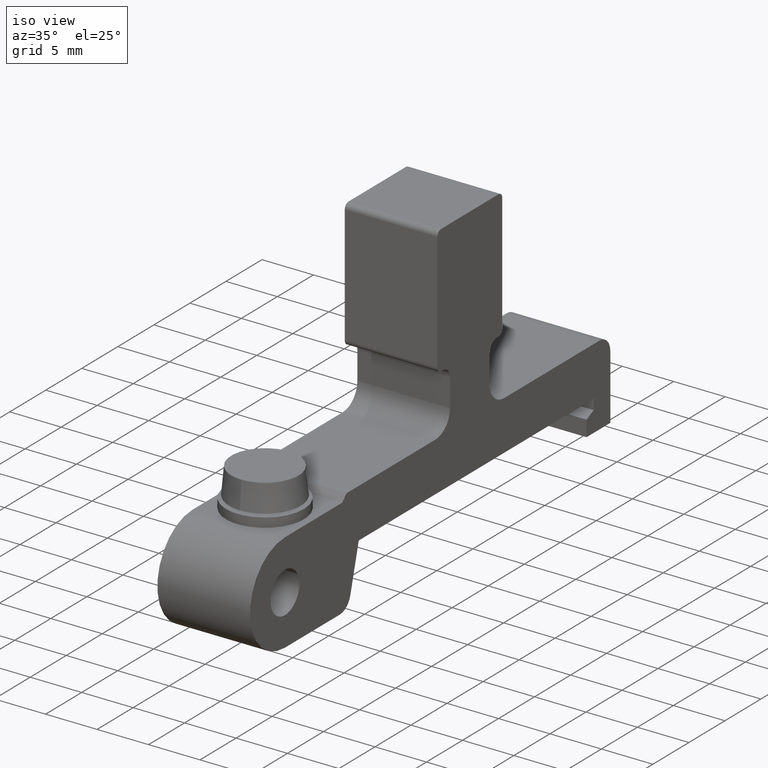
[diagram: clean part render]
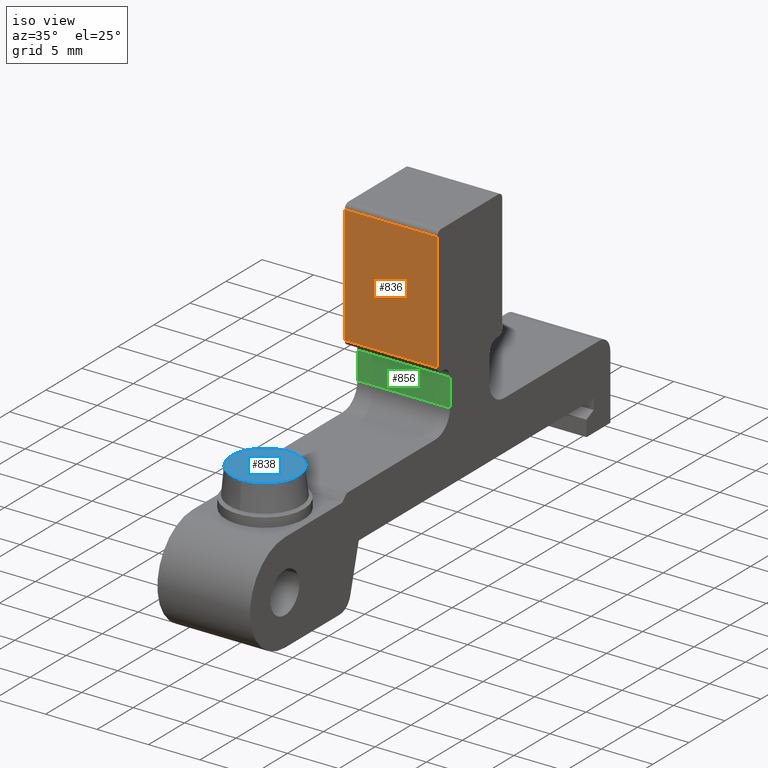
[diagram: same view with three faces highlighted in distinct colors, each labeled with its STEP entity id]
A machine part, iso view with three faces highlighted in distinct colors.
Their STEP definitions:

[orange] entity #836 — the highlighted planar face has unit normal (0, -1, -0).
#29=PLANE('',#916);
#101=FACE_OUTER_BOUND('',#146,.T.);
#146=EDGE_LOOP('',(#635,#636,#637,#638));
#206=LINE('',#1293,#284);
#209=LINE('',#1306,#287);
#215=LINE('',#1321,#293);
#216=LINE('',#1324,#294);
#284=VECTOR('',#1026,10.);
#287=VECTOR('',#1039,10.);
#293=VECTOR('',#1055,10.);
#294=VECTOR('',#1060,10.);
#407=VERTEX_POINT('',#1290);
#408=VERTEX_POINT('',#1292);
#413=VERTEX_POINT('',#1304);
#417=VERTEX_POINT('',#1320);
#488=EDGE_CURVE('',#407,#408,#206,.T.);
#495=EDGE_CURVE('',#413,#407,#209,.T.);
#502=EDGE_CURVE('',#408,#417,#215,.T.);
#504=EDGE_CURVE('',#417,#413,#216,.T.);
#635=ORIENTED_EDGE('',*,*,#495,.F.);
#636=ORIENTED_EDGE('',*,*,#504,.F.);
#637=ORIENTED_EDGE('',*,*,#502,.F.);
#638=ORIENTED_EDGE('',*,*,#488,.F.);
#836=ADVANCED_FACE('',(#101),#29,.T.);
#916=AXIS2_PLACEMENT_3D('',#1323,#1058,#1059);
#1026=DIRECTION('',(0.,-1.1584935909132E-15,1.));
#1039=DIRECTION('',(-1.,0.,0.));
#1055=DIRECTION('',(1.,0.,0.));
#1058=DIRECTION('center_axis',(0.,-1.,-1.1584935909132E-15));
#1059=DIRECTION('ref_axis',(0.,1.1584935909132E-15,-1.));
#1060=DIRECTION('',(0.,1.1584935909132E-15,-1.));
#1290=CARTESIAN_POINT('',(-4.5,-4.19999999999999,11.65));
#1292=CARTESIAN_POINT('',(-4.5,-4.20000000000001,23.15));
#1293=CARTESIAN_POINT('',(-4.5,-4.20000000000001,23.15));
#1304=CARTESIAN_POINT('',(4.5,-4.19999999999999,11.65));
#1306=CARTESIAN_POINT('',(0.,-4.19999999999999,11.65));
#1320=CARTESIAN_POINT('',(4.5,-4.20000000000001,23.15));
#1321=CARTESIAN_POINT('',(0.,-4.20000000000001,23.15));
#1323=CARTESIAN_POINT('Origin',(0.,-4.20000000000001,23.15));
#1324=CARTESIAN_POINT('',(4.5,-4.20000000000001,23.15));

[blue] entity #838 — the highlighted planar face has unit normal (0, -0, 1).
#31=PLANE('',#918);
#103=FACE_OUTER_BOUND('',#148,.T.);
#148=EDGE_LOOP('',(#643,#644));
#357=CIRCLE('',#919,3.2725294748326);
#358=CIRCLE('',#920,3.2725294748326);
#420=VERTEX_POINT('',#1332);
#421=VERTEX_POINT('',#1333);
#508=EDGE_CURVE('',#420,#421,#357,.T.);
#509=EDGE_CURVE('',#421,#420,#358,.T.);
#643=ORIENTED_EDGE('',*,*,#508,.T.);
#644=ORIENTED_EDGE('',*,*,#509,.T.);
#838=ADVANCED_FACE('',(#103),#31,.T.);
#918=AXIS2_PLACEMENT_3D('',#1331,#1066,#1067);
#919=AXIS2_PLACEMENT_3D('',#1334,#1068,#1069);
#920=AXIS2_PLACEMENT_3D('',#1335,#1070,#1071);
#1066=DIRECTION('center_axis',(2.15691530204673E-48,-2.46519032881566E-32,
1.));
#1067=DIRECTION('ref_axis',(-1.,-8.74948792729915E-17,0.));
#1068=DIRECTION('center_axis',(2.15691530204673E-48,-2.46519032881566E-32,
1.));
#1069=DIRECTION('ref_axis',(-8.74948792729915E-17,1.,2.46519032881566E-32));
#1070=DIRECTION('center_axis',(2.15691530204673E-48,-2.46519032881566E-32,
1.));
#1071=DIRECTION('ref_axis',(-8.74948792729915E-17,1.,2.46519032881566E-32));
#1331=CARTESIAN_POINT('Origin',(1.43381606495902E-17,-23.45,8.55));
#1332=CARTESIAN_POINT('',(-3.21705597769889,-22.3,8.55));
#1333=CARTESIAN_POINT('',(5.48320967886551E-16,-24.9725294748326,8.55));
#1334=CARTESIAN_POINT('Origin',(-1.38777878078145E-16,-21.7,8.55));
#1335=CARTESIAN_POINT('Origin',(-1.38777878078145E-16,-21.7,8.55));

[green] entity #856 — the highlighted planar face has unit normal (0, -1, 0).
#41=PLANE('',#956);
#121=FACE_OUTER_BOUND('',#168,.T.);
#168=EDGE_LOOP('',(#723,#724,#725,#726));
#204=LINE('',#1285,#282);
#240=LINE('',#1414,#318);
#241=LINE('',#1417,#319);
#242=LINE('',#1418,#320);
#282=VECTOR('',#1020,10.);
#318=VECTOR('',#1162,10.);
#319=VECTOR('',#1165,10.);
#320=VECTOR('',#1166,10.);
#403=VERTEX_POINT('',#1282);
#404=VERTEX_POINT('',#1284);
#444=VERTEX_POINT('',#1412);
#445=VERTEX_POINT('',#1416);
#484=EDGE_CURVE('',#403,#404,#204,.T.);
#548=EDGE_CURVE('',#403,#444,#240,.T.);
#549=EDGE_CURVE('',#445,#444,#241,.T.);
#550=EDGE_CURVE('',#404,#445,#242,.T.);
#723=ORIENTED_EDGE('',*,*,#548,.T.);
#724=ORIENTED_EDGE('',*,*,#549,.F.);
#725=ORIENTED_EDGE('',*,*,#550,.F.);
#726=ORIENTED_EDGE('',*,*,#484,.F.);
#856=ADVANCED_FACE('',(#121),#41,.T.);
#956=AXIS2_PLACEMENT_3D('',#1415,#1163,#1164);
#1020=DIRECTION('',(0.,1.64477485129653E-15,1.));
#1162=DIRECTION('',(1.,0.,0.));
#1163=DIRECTION('center_axis',(0.,-1.,1.64477485129653E-15));
#1164=DIRECTION('ref_axis',(0.,-1.64477485129653E-15,-1.));
#1165=DIRECTION('',(0.,-1.64477485129653E-15,-1.));
#1166=DIRECTION('',(1.,0.,0.));
#1282=CARTESIAN_POINT('',(-4.5,-2.45,7.45));
#1284=CARTESIAN_POINT('',(-4.5,-2.44999999999999,10.15));
#1285=CARTESIAN_POINT('',(-4.5,-2.44999999999999,10.15));
#1412=CARTESIAN_POINT('',(4.5,-2.45,7.45));
#1414=CARTESIAN_POINT('',(0.,-2.45,7.45));
#1415=CARTESIAN_POINT('Origin',(0.,-2.44999999999999,10.15));
#1416=CARTESIAN_POINT('',(4.5,-2.44999999999999,10.15));
#1417=CARTESIAN_POINT('',(4.5,-2.44999999999999,10.15));
#1418=CARTESIAN_POINT('',(0.,-2.44999999999999,10.15));